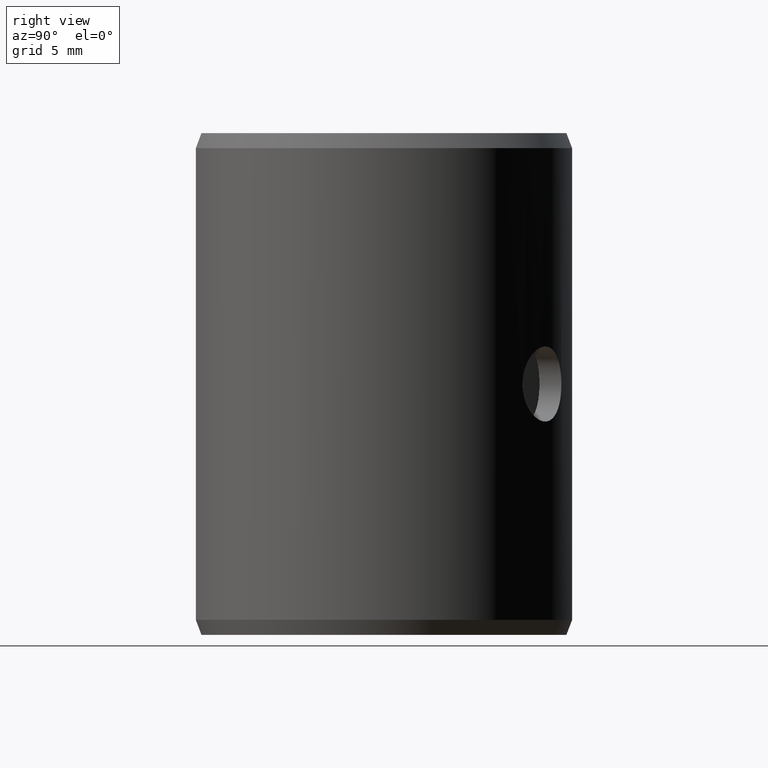
[diagram: clean part render]
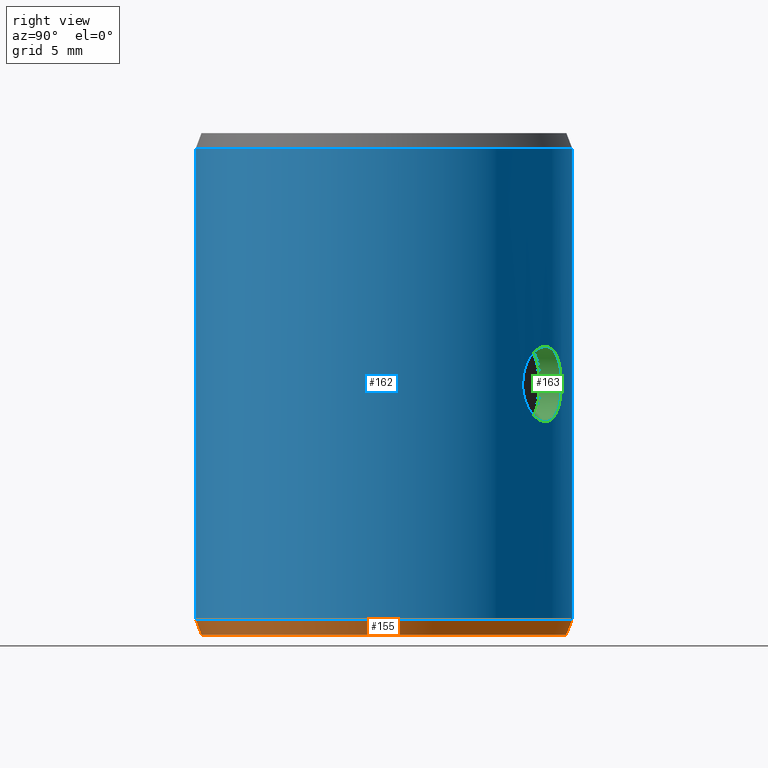
[diagram: same view with three faces highlighted in distinct colors, each labeled with its STEP entity id]
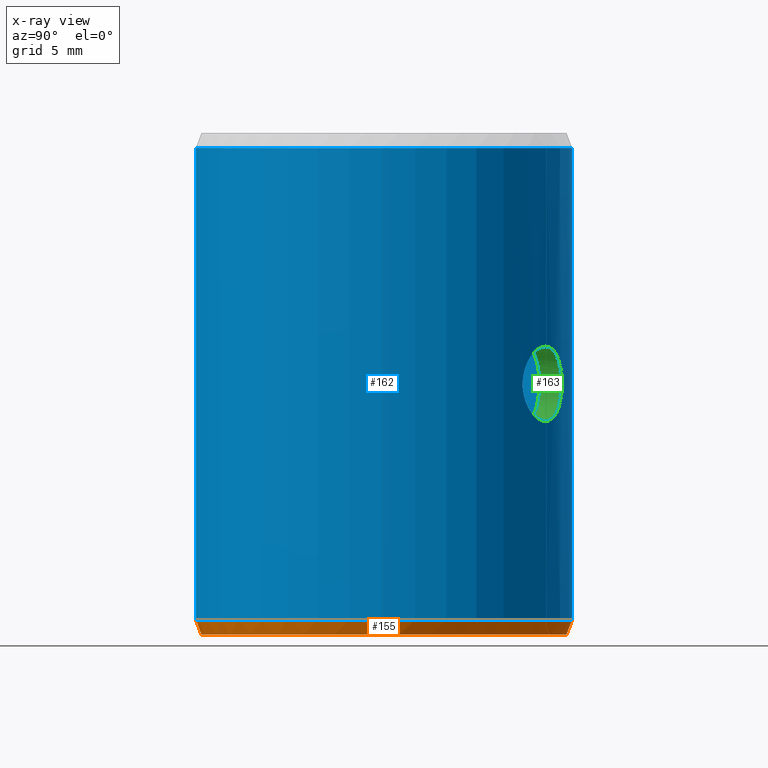
[diagram: x-ray of the same camera — body ghosted, the three highlighted faces saturated]
A machine part, right view with three faces highlighted in distinct colors.
The next image is the same camera in x-ray (body ghosted, the three faces saturated) — at least one of them is partly hidden behind the body in this view.
Their STEP definitions:

[orange] entity #155 — the highlighted conical surface has half-angle 20 deg.
#155=ADVANCED_FACE('',(#170),#171,.T.);
#170=FACE_OUTER_BOUND('',#196,.T.);
#171=CONICAL_SURFACE('',#197,0.0145632357188806,0.349065850398869);
#196=EDGE_LOOP('',(#231,#232,#233,#234));
#197=AXIS2_PLACEMENT_3D('',#235,#236,#237);
#231=ORIENTED_EDGE('',*,*,#309,.T.);
#232=ORIENTED_EDGE('',*,*,#310,.F.);
#233=ORIENTED_EDGE('',*,*,#306,.F.);
#234=ORIENTED_EDGE('',*,*,#311,.T.);
#235=CARTESIAN_POINT('',(-6.93889390390723E-018,-6.93889390390723E-018,-9.02779661431517E-036));
#236=DIRECTION('',(-6.12323399573677E-017,0.0,1.0));
#237=DIRECTION('',(1.0,0.0,6.12323399573677E-017));
#306=EDGE_CURVE('',#336,#337,#338,.T.);
#309=EDGE_CURVE('',#341,#342,#343,.T.);
#310=EDGE_CURVE('',#337,#342,#344,.T.);
#311=EDGE_CURVE('',#336,#341,#345,.T.);
#336=VERTEX_POINT('',#382);
#337=VERTEX_POINT('',#383);
#338=CIRCLE('',#384,0.0145632357188806);
#341=VERTEX_POINT('',#389);
#342=VERTEX_POINT('',#390);
#343=CIRCLE('',#391,0.015);
#344=LINE('',#392,#393);
#345=LINE('',#394,#395);
#382=CARTESIAN_POINT('',(0.000254163508807862,0.0145610176675419,1.55630263760809E-020));
#383=CARTESIAN_POINT('',(-6.93889390390723E-018,0.0145632357188805,0.0));
#384=AXIS2_PLACEMENT_3D('',#564,#565,#566);
#389=CARTESIAN_POINT('',(0.000261786096559247,0.0149977154273459,0.0012));
#390=CARTESIAN_POINT('',(-6.93889390390723E-018,0.015,0.0012));
#391=AXIS2_PLACEMENT_3D('',#569,#570,#571);
#392=CARTESIAN_POINT('',(-6.93889390390723E-018,0.0145632357188805,0.0));
#393=VECTOR('',#572,1.0);
#394=CARTESIAN_POINT('',(0.000254163508807862,0.0145610176675419,1.55630263760809E-020));
#395=VECTOR('',#573,1.0);
#564=CARTESIAN_POINT('',(-6.93889390390723E-018,-6.93889390390723E-018,-9.02779661431517E-036));
#565=DIRECTION('',(6.12323399573677E-017,0.0,-1.0));
#566=DIRECTION('',(-1.0,0.0,-6.12323399573677E-017));
#569=CARTESIAN_POINT('',(-6.93889390390723E-018,-6.93889390390723E-018,0.0012));
#570=DIRECTION('',(6.12323399573677E-017,0.0,-1.0));
#571=DIRECTION('',(-1.0,0.0,-6.12323399573677E-017));
#572=DIRECTION('',(0.0,0.342020143325671,0.939692620785908));
#573=DIRECTION('',(0.00596907455105759,0.341968052001231,0.939692620785908));

[blue] entity #162 — the highlighted cylindrical surface (partial cylindrical patch) has radius 15 mm, axis along (-0, 0, -1).
#162=ADVANCED_FACE('',(#185,#186),#187,.T.);
#185=FACE_OUTER_BOUND('',#211,.T.);
#186=FACE_BOUND('',#212,.T.);
#187=CYLINDRICAL_SURFACE('',#213,0.015);
#211=EDGE_LOOP('',(#289,#290,#291,#292));
#212=EDGE_LOOP('',(#293));
#213=AXIS2_PLACEMENT_3D('',#294,#295,#296);
#289=ORIENTED_EDGE('',*,*,#314,.T.);
#290=ORIENTED_EDGE('',*,*,#323,.F.);
#291=ORIENTED_EDGE('',*,*,#309,.F.);
#292=ORIENTED_EDGE('',*,*,#324,.T.);
#293=ORIENTED_EDGE('',*,*,#327,.T.);
#294=CARTESIAN_POINT('',(-6.93889390390723E-018,-6.93889390390723E-018,0.0));
#295=DIRECTION('',(6.12323399573677E-017,0.0,-1.0));
#296=DIRECTION('',(-1.0,0.0,-6.12323399573677E-017));
#309=EDGE_CURVE('',#341,#342,#343,.T.);
#314=EDGE_CURVE('',#351,#349,#352,.T.);
#323=EDGE_CURVE('',#342,#349,#365,.T.);
#324=EDGE_CURVE('',#341,#351,#366,.T.);
#327=EDGE_CURVE('',#370,#370,#371,.T.);
#341=VERTEX_POINT('',#389);
#342=VERTEX_POINT('',#390);
#343=CIRCLE('',#391,0.015);
#349=VERTEX_POINT('',#399);
#351=VERTEX_POINT('',#402);
#352=CIRCLE('',#403,0.015);
#365=LINE('',#422,#423);
#366=LINE('',#424,#425);
#370=VERTEX_POINT('',#491);
#371=B_SPLINE_CURVE_WITH_KNOTS('',3,(#492,#493,#494,#495,#496,#497,#498,#499,#500,#501,#502,#503,#504,#505,#506,#507,#508,#509,#510,#511,#512,#513,#514,#515,#516,#517,#518,#519,#520,#521,#522,#523,#524,#525,#526,#527,#528,#529,#530,#531,#532,#533,#534,#535,#536,#537,#538,#539,#540,#541,#542,#543,#544,#545,#546,#547,#548,#549,#550,#551,#552,#553,#554,#555),.UNSPECIFIED.,.T.,.F.,(2,2,2,2,2,2,2,2,2,2,2,2,2,2,2,2,2,2,2,2,2,2,2,2,2,2,2,2,2,2,2,2,2,2),(-0.000587616534640796,0.0,0.000587616534640802,0.0011752330692816,0.00176284960392241,0.00235046613856321,0.00293808267320401,0.00352569920784481,0.00411331574248561,0.00470093227712642,0.00528854881176722,0.00587616534640802,0.00646378188104882,0.00705139841568963,0.00763901495033043,0.00822663148497123,0.00881424801961203,0.00940186455425284,0.00998948108889364,0.0105770976235344,0.0111647141581752,0.011752330692816,0.0123399472274568,0.0129275637620976,0.0135151802967385,0.0141027968313793,0.0146904133660201,0.0152780299006609,0.0158656464353017,0.0164532629699425,0.0176284960392241,0.0182161125738649,0.0188037291085057,0.0193913456431465),.UNSPECIFIED.);
#389=CARTESIAN_POINT('',(0.000261786096559247,0.0149977154273459,0.0012));
#390=CARTESIAN_POINT('',(-6.93889390390723E-018,0.015,0.0012));
#391=AXIS2_PLACEMENT_3D('',#569,#570,#571);
#399=CARTESIAN_POINT('',(-8.67361737988404E-018,0.015,0.0388));
#402=CARTESIAN_POINT('',(0.000261786096559245,0.0149977154273459,0.0388));
#403=AXIS2_PLACEMENT_3D('',#578,#579,#580);
#422=CARTESIAN_POINT('',(-6.93889390390723E-018,0.015,0.0012));
#423=VECTOR('',#593,1.0);
#424=CARTESIAN_POINT('',(0.000261786096559247,0.0149977154273459,0.0012));
#425=VECTOR('',#594,1.0);
#491=CARTESIAN_POINT('',(0.0110526208408191,-0.0101409847918776,0.02));
#492=CARTESIAN_POINT('',(0.0110526208408191,-0.0101409847918776,0.0198012673725046));
#493=CARTESIAN_POINT('',(0.0110526208408191,-0.0101409847918776,0.0201987326274954));
#494=CARTESIAN_POINT('',(0.0110661441139161,-0.0101263012203286,0.0203940413633142));
#495=CARTESIAN_POINT('',(0.0111186673414911,-0.0100686026093021,0.0207781235462783));
#496=CARTESIAN_POINT('',(0.0111583215329435,-0.0100248562161596,0.020968921723449));
#497=CARTESIAN_POINT('',(0.011260245013509,-0.00991023530613537,0.0213319627377527));
#498=CARTESIAN_POINT('',(0.0113220759873045,-0.00983985660964806,0.0215040687929627));
#499=CARTESIAN_POINT('',(0.0114656527355897,-0.00967217607922833,0.0218297854062279));
#500=CARTESIAN_POINT('',(0.0115479121824047,-0.00957419221474236,0.0219836030783359));
#501=CARTESIAN_POINT('',(0.0117238545099675,-0.00935792005557218,0.0222595365827685));
#502=CARTESIAN_POINT('',(0.0118182526797215,-0.00923883626886934,0.0223835420887977));
#503=CARTESIAN_POINT('',(0.0120185031215394,-0.00897679089219902,0.022602880477979));
#504=CARTESIAN_POINT('',(0.0121223364018056,-0.00883638446837001,0.0226957618543431));
#505=CARTESIAN_POINT('',(0.0123319305949029,-0.00854144121995166,0.0228455559270416));
#506=CARTESIAN_POINT('',(0.0124392169881467,-0.00838471659753903,0.0229034374048186));
#507=CARTESIAN_POINT('',(0.012651781915044,-0.00806039738929858,0.0229807062089283));
#508=CARTESIAN_POINT('',(0.0127555230335729,-0.00789525980669669,0.0229998832974126));
#509=CARTESIAN_POINT('',(0.0129576659984535,-0.00755892764535897,0.0230001156507429));
#510=CARTESIAN_POINT('',(0.0130569509676747,-0.00738601190610246,0.0229805191972809));
#511=CARTESIAN_POINT('',(0.0132423993281657,-0.00704812035104002,0.022903762695182));
#512=CARTESIAN_POINT('',(0.0133293801680797,-0.00688192668646147,0.022846977127654));
#513=CARTESIAN_POINT('',(0.0134928324286928,-0.00655566652860264,0.0226962608643489));
#514=CARTESIAN_POINT('',(0.0135684918850669,-0.00639708350852047,0.022602556187018));
#515=CARTESIAN_POINT('',(0.0137045018954718,-0.00610026862089857,0.0223856685479805));
#516=CARTESIAN_POINT('',(0.0137659407401233,-0.00595975803789766,0.0222611133610915));
#517=CARTESIAN_POINT('',(0.0138754321374853,-0.00570019502551569,0.0219823388769089));
#518=CARTESIAN_POINT('',(0.0139223267613886,-0.0055839903677347,0.0218314201349415));
#519=CARTESIAN_POINT('',(0.0140028241332208,-0.00537894480097353,0.0215070411983858));
#520=CARTESIAN_POINT('',(0.0140366705910815,-0.00528939892230085,0.0213314258827292));
#521=CARTESIAN_POINT('',(0.0140899356754166,-0.00514583082741675,0.0209688752054024));
#522=CARTESIAN_POINT('',(0.0141096151885063,-0.00509119918648758,0.0207818914102204));
#523=CARTESIAN_POINT('',(0.0141361453911068,-0.00501706521840291,0.0203963823799537));
#524=CARTESIAN_POINT('',(0.0141428220834141,-0.00499805797520601,0.020197264375322));
#525=CARTESIAN_POINT('',(0.0141428763282577,-0.00499790447790203,0.0198051765730898));
#526=CARTESIAN_POINT('',(0.0141364665055109,-0.00501616026688986,0.0196099736308847));
#527=CARTESIAN_POINT('',(0.0141099482873685,-0.00509027586799996,0.0192212999358219));
#528=CARTESIAN_POINT('',(0.0140901114935298,-0.00514534261378605,0.0190327793147828));
#529=CARTESIAN_POINT('',(0.0140371734196184,-0.00528805776262922,0.0186715446550953));
#530=CARTESIAN_POINT('',(0.0140035750700722,-0.00537700076206164,0.0184963475420745));
#531=CARTESIAN_POINT('',(0.0139226981309146,-0.00558307520044179,0.0181697186589999));
#532=CARTESIAN_POINT('',(0.0138758148263774,-0.00569923140804706,0.0180189879629557));
#533=CARTESIAN_POINT('',(0.0137673741833885,-0.00595641535094323,0.0177421896776879));
#534=CARTESIAN_POINT('',(0.0137052306033078,-0.00609863450952241,0.0176156756955914));
#535=CARTESIAN_POINT('',(0.0135691533363116,-0.00639568342761334,0.0173983182306449));
#536=CARTESIAN_POINT('',(0.0134947772756335,-0.00655166432844321,0.0173059147362386));
#537=CARTESIAN_POINT('',(0.0133313499186318,-0.00687811228016419,0.0171544658923266));
#538=CARTESIAN_POINT('',(0.0132432057355811,-0.0070465855792944,0.0170967490392105));
#539=CARTESIAN_POINT('',(0.0130584975127983,-0.0073832587107244,0.0170199452002982));
#540=CARTESIAN_POINT('',(0.0129605956689943,-0.00755395268651736,0.0170001397264852));
#541=CARTESIAN_POINT('',(0.012756591284186,-0.00789358094235602,0.016999861750353));
#542=CARTESIAN_POINT('',(0.0126527535711744,-0.00805883678712944,0.0170191537885664));
#543=CARTESIAN_POINT('',(0.0124418728210435,-0.00838074125596523,0.0170953876165608));
#544=CARTESIAN_POINT('',(0.012333686201756,-0.0085389243306955,0.017153342300093));
#545=CARTESIAN_POINT('',(0.0121231334067134,-0.00883530873550886,0.0173035174452321));
#546=CARTESIAN_POINT('',(0.0120202375293411,-0.00897445823801845,0.0173955124321165));
#547=CARTESIAN_POINT('',(0.011820715143269,-0.00923567563470097,0.0176134741760668));
#548=CARTESIAN_POINT('',(0.0117246360154034,-0.00935694055624952,0.0177393863243538));
#549=CARTESIAN_POINT('',(0.0114607913160129,-0.00968132054413715,0.0181527350545179));
#550=CARTESIAN_POINT('',(0.0113114601783638,-0.00985262464379353,0.0184864457033704));
#551=CARTESIAN_POINT('',(0.0111591807525907,-0.0100238974887794,0.0190276060429597));
#552=CARTESIAN_POINT('',(0.0111193224061637,-0.0100678810726159,0.0192179084384868));
#553=CARTESIAN_POINT('',(0.0110661475581575,-0.0101262993381411,0.0196051213694044));
#554=CARTESIAN_POINT('',(0.0110526208408191,-0.0101409847918776,0.0198012673725046));
#555=CARTESIAN_POINT('',(0.0110526208408191,-0.0101409847918776,0.0201987326274954));
#569=CARTESIAN_POINT('',(-6.93889390390723E-018,-6.93889390390723E-018,0.0012));
#570=DIRECTION('',(6.12323399573677E-017,0.0,-1.0));
#571=DIRECTION('',(-1.0,0.0,-6.12323399573677E-017));
#578=CARTESIAN_POINT('',(-8.67361737988404E-018,-6.93889390390723E-018,0.0388));
#579=DIRECTION('',(6.12323399573677E-017,0.0,-1.0));
#580=DIRECTION('',(-1.0,0.0,-6.12323399573677E-017));
#593=DIRECTION('',(-4.61362626589576E-017,-9.22725253179153E-017,1.0));
#594=DIRECTION('',(-4.77489394794925E-017,-9.25219346419978E-017,1.0));

[green] entity #163 — the highlighted cylindrical surface (bore or boss wall) has radius 3 mm, axis along (0.515, 0.8572, 0).
#163=ADVANCED_FACE('',(#188,#189),#190,.F.);
#188=FACE_OUTER_BOUND('',#214,.T.);
#189=FACE_OUTER_BOUND('',#215,.T.);
#190=CYLINDRICAL_SURFACE('',#216,0.003);
#214=EDGE_LOOP('',(#297));
#215=EDGE_LOOP('',(#298));
#216=AXIS2_PLACEMENT_3D('',#299,#300,#301);
#297=ORIENTED_EDGE('',*,*,#326,.F.);
#298=ORIENTED_EDGE('',*,*,#327,.F.);
#299=CARTESIAN_POINT('',(0.0085716730070391,-0.00515038074907059,0.02));
#300=DIRECTION('',(0.85716730070391,-0.515038074907062,0.0));
#301=DIRECTION('',(-0.515038074907062,-0.85716730070391,0.0));
#326=EDGE_CURVE('',#368,#368,#369,.T.);
#327=EDGE_CURVE('',#370,#370,#371,.T.);
#368=VERTEX_POINT('',#428);
#369=B_SPLINE_CURVE_WITH_KNOTS('',3,(#429,#430,#431,#432,#433,#434,#435,#436,#437,#438,#439,#440,#441,#442,#443,#444,#445,#446,#447,#448,#449,#450,#451,#452,#453,#454,#455,#456,#457,#458,#459,#460,#461,#462,#463,#464,#465,#466,#467,#468,#469,#470,#471,#472,#473,#474,#475,#476,#477,#478,#479,#480,#481,#482,#483,#484,#485,#486,#487,#488,#489,#490),.UNSPECIFIED.,.T.,.F.,(2,2,2,2,2,2,2,2,2,2,2,2,2,2,2,2,2,2,2,2,2,2,2,2,2,2,2,2,2,2,2,2,2),(-0.000588115938674232,0.0,0.000588115938674229,0.00117623187734846,0.00176434781602269,0.00235246375469691,0.00294057969337114,0.00352869563204537,0.0041168115707196,0.00470492750939383,0.00529304344806806,0.00588115938674229,0.00646927532541651,0.00705739126409074,0.00764550720276497,0.0082336231414392,0.00882173908011343,0.00940985501878766,0.0105860868961361,0.0111742028348104,0.0117623187734846,0.0123504347121588,0.012938550650833,0.0141147825281815,0.0147028984668557,0.01529101440553,0.0158791303442042,0.0164672462828784,0.0170553622215526,0.0176434781602269,0.0182315940989011,0.0188197100375753,0.0194078259762496),.UNSPECIFIED.);
#370=VERTEX_POINT('',#491);
#371=B_SPLINE_CURVE_WITH_KNOTS('',3,(#492,#493,#494,#495,#496,#497,#498,#499,#500,#501,#502,#503,#504,#505,#506,#507,#508,#509,#510,#511,#512,#513,#514,#515,#516,#517,#518,#519,#520,#521,#522,#523,#524,#525,#526,#527,#528,#529,#530,#531,#532,#533,#534,#535,#536,#537,#538,#539,#540,#541,#542,#543,#544,#545,#546,#547,#548,#549,#550,#551,#552,#553,#554,#555),.UNSPECIFIED.,.T.,.F.,(2,2,2,2,2,2,2,2,2,2,2,2,2,2,2,2,2,2,2,2,2,2,2,2,2,2,2,2,2,2,2,2,2,2),(-0.000587616534640796,0.0,0.000587616534640802,0.0011752330692816,0.00176284960392241,0.00235046613856321,0.00293808267320401,0.00352569920784481,0.00411331574248561,0.00470093227712642,0.00528854881176722,0.00587616534640802,0.00646378188104882,0.00705139841568963,0.00763901495033043,0.00822663148497123,0.00881424801961203,0.00940186455425284,0.00998948108889364,0.0105770976235344,0.0111647141581752,0.011752330692816,0.0123399472274568,0.0129275637620976,0.0135151802967385,0.0141027968313793,0.0146904133660201,0.0152780299006609,0.0158656464353017,0.0164532629699425,0.0176284960392241,0.0182161125738649,0.0188037291085057,0.0193913456431465),.UNSPECIFIED.);
#428=CARTESIAN_POINT('',(0.00929728979945005,-0.00908627549577064,0.02));
#429=CARTESIAN_POINT('',(0.00929728979945005,-0.00908627549577064,0.0201989157082192));
#430=CARTESIAN_POINT('',(0.00929728979945005,-0.00908627549577064,0.0198010842917807));
#431=CARTESIAN_POINT('',(0.00931139817799047,-0.00907190225823773,0.019605631631804));
#432=CARTESIAN_POINT('',(0.00936611503513822,-0.00901539992239173,0.019221324873248));
#433=CARTESIAN_POINT('',(0.00940741089454677,-0.00897254565877377,0.019030437384424));
#434=CARTESIAN_POINT('',(0.00951327012871062,-0.0088602283715376,0.0186674898008351));
#435=CARTESIAN_POINT('',(0.00957740332189922,-0.0087912253245028,0.0184954551620648));
#436=CARTESIAN_POINT('',(0.00972598011278978,-0.0086265640867105,0.0181698732400995));
#437=CARTESIAN_POINT('',(0.00981087209807339,-0.00853031745320233,0.0180162632339704));
#438=CARTESIAN_POINT('',(0.0099919722469823,-0.00831745260237164,0.0177405942034214));
#439=CARTESIAN_POINT('',(0.0100889367607007,-0.00820003975402716,0.0176166447005962));
#440=CARTESIAN_POINT('',(0.0102940741396144,-0.0079409907780558,0.017397289957311));
#441=CARTESIAN_POINT('',(0.0103999645079853,-0.00780214852596706,0.0173045227165322));
#442=CARTESIAN_POINT('',(0.0106132223267488,-0.00750948035696232,0.0171546624647469));
#443=CARTESIAN_POINT('',(0.0107221123297463,-0.00735349808481569,0.0170966796869884));
#444=CARTESIAN_POINT('',(0.0109367371952506,-0.0070303205060017,0.0170193388028959));
#445=CARTESIAN_POINT('',(0.0110410563306475,-0.00686539483584787,0.0170001205031187));
#446=CARTESIAN_POINT('',(0.0112434059858247,-0.00652873594094131,0.0169998806158374));
#447=CARTESIAN_POINT('',(0.011342264592137,-0.00635533014440286,0.0170195202487443));
#448=CARTESIAN_POINT('',(0.0115257807545716,-0.00601610881882536,0.0170963614482619));
#449=CARTESIAN_POINT('',(0.0116113371508997,-0.00584895268564022,0.0171532077614402));
#450=CARTESIAN_POINT('',(0.0117711627877684,-0.00552024678565886,0.0173041246378501));
#451=CARTESIAN_POINT('',(0.0118444431689657,-0.0053605870958801,0.0173977403931483));
#452=CARTESIAN_POINT('',(0.0119755046056225,-0.00506102928623115,0.0176145714787194));
#453=CARTESIAN_POINT('',(0.012034362076845,-0.00491874208379484,0.0177393545307701));
#454=CARTESIAN_POINT('',(0.0121382510397824,-0.00465647462988058,0.018017617591275));
#455=CARTESIAN_POINT('',(0.012182434411053,-0.00453878121964329,0.0181683366117685));
#456=CARTESIAN_POINT('',(0.0122579269671041,-0.00433075854886136,0.0184925910632962));
#457=CARTESIAN_POINT('',(0.0122894422274765,-0.00423975670597719,0.0186682525453787));
#458=CARTESIAN_POINT('',(0.0123387955993382,-0.0040939040470085,0.0190304908760893));
#459=CARTESIAN_POINT('',(0.0123569410576353,-0.00403826500986523,0.0192174821970901));
#460=CARTESIAN_POINT('',(0.0123813786812032,-0.00396270596239752,0.0196034326594096));
#461=CARTESIAN_POINT('',(0.0123874924780217,-0.00394335264896871,0.0198025887940825));
#462=CARTESIAN_POINT('',(0.0123875695430586,-0.00394311055444487,0.0203910415437104));
#463=CARTESIAN_POINT('',(0.0123635274019217,-0.0040207801800044,0.0207870972485671));
#464=CARTESIAN_POINT('',(0.0122898662597692,-0.00423852074260371,0.021329075208232));
#465=CARTESIAN_POINT('',(0.0122585331114914,-0.0043290530389067,0.0215044685264383));
#466=CARTESIAN_POINT('',(0.0121827826186984,-0.00453785653417317,0.021830500465307));
#467=CARTESIAN_POINT('',(0.0121386096230333,-0.00465550994438234,0.0219811095566304));
#468=CARTESIAN_POINT('',(0.0120354891288734,-0.00491595543627173,0.022257934631748));
#469=CARTESIAN_POINT('',(0.0119761210304075,-0.00505957065725904,0.0223842322748958));
#470=CARTESIAN_POINT('',(0.0118450905958072,-0.00535915655191067,0.0226013632147855));
#471=CARTESIAN_POINT('',(0.0117729474020318,-0.00551644761022646,0.0226938369059211));
#472=CARTESIAN_POINT('',(0.0115330479420145,-0.00601021998238986,0.0229214128598247));
#473=CARTESIAN_POINT('',(0.0113479694576776,-0.00635455411503189,0.0229997645561234));
#474=CARTESIAN_POINT('',(0.0110421525781504,-0.00686367675842615,0.0230001169298978));
#475=CARTESIAN_POINT('',(0.0109377657217392,-0.00702868534077101,0.0229808274273991));
#476=CARTESIAN_POINT('',(0.0107246227760454,-0.00734980291672841,0.0229044259993158));
#477=CARTESIAN_POINT('',(0.0106148363148817,-0.00750721629720439,0.0228463314850796));
#478=CARTESIAN_POINT('',(0.0104007708033993,-0.00780109051478684,0.0226961825354363));
#479=CARTESIAN_POINT('',(0.0102956638692547,-0.0079389218998833,0.0226041625979109));
#480=CARTESIAN_POINT('',(0.0100910426861032,-0.00819744063402513,0.0223858501036057));
#481=CARTESIAN_POINT('',(0.0099926803602708,-0.00831660125140312,0.0222603530005565));
#482=CARTESIAN_POINT('',(0.00981164539424319,-0.00852942740252874,0.0219850434850607));
#483=CARTESIAN_POINT('',(0.00972760916264427,-0.00862473856388133,0.0218333953533095));
#484=CARTESIAN_POINT('',(0.00957785955988763,-0.00879073953473379,0.0215058416463024));
#485=CARTESIAN_POINT('',(0.00951372034194745,-0.0088597426378961,0.0213336669464154));
#486=CARTESIAN_POINT('',(0.00940823397702634,-0.00897168032132588,0.0209727668274811));
#487=CARTESIAN_POINT('',(0.0093666760316395,-0.00901481882617789,0.0207819399640915));
#488=CARTESIAN_POINT('',(0.00931140238042744,-0.00907189969412532,0.0203950663535035));
#489=CARTESIAN_POINT('',(0.00929728979945005,-0.00908627549577064,0.0201989157082192));
#490=CARTESIAN_POINT('',(0.00929728979945005,-0.00908627549577064,0.0198010842917807));
#491=CARTESIAN_POINT('',(0.0110526208408191,-0.0101409847918776,0.02));
#492=CARTESIAN_POINT('',(0.0110526208408191,-0.0101409847918776,0.0198012673725046));
#493=CARTESIAN_POINT('',(0.0110526208408191,-0.0101409847918776,0.0201987326274954));
#494=CARTESIAN_POINT('',(0.0110661441139161,-0.0101263012203286,0.0203940413633142));
#495=CARTESIAN_POINT('',(0.0111186673414911,-0.0100686026093021,0.0207781235462783));
#496=CARTESIAN_POINT('',(0.0111583215329435,-0.0100248562161596,0.020968921723449));
#497=CARTESIAN_POINT('',(0.011260245013509,-0.00991023530613537,0.0213319627377527));
#498=CARTESIAN_POINT('',(0.0113220759873045,-0.00983985660964806,0.0215040687929627));
#499=CARTESIAN_POINT('',(0.0114656527355897,-0.00967217607922833,0.0218297854062279));
#500=CARTESIAN_POINT('',(0.0115479121824047,-0.00957419221474236,0.0219836030783359));
#501=CARTESIAN_POINT('',(0.0117238545099675,-0.00935792005557218,0.0222595365827685));
#502=CARTESIAN_POINT('',(0.0118182526797215,-0.00923883626886934,0.0223835420887977));
#503=CARTESIAN_POINT('',(0.0120185031215394,-0.00897679089219902,0.022602880477979));
#504=CARTESIAN_POINT('',(0.0121223364018056,-0.00883638446837001,0.0226957618543431));
#505=CARTESIAN_POINT('',(0.0123319305949029,-0.00854144121995166,0.0228455559270416));
#506=CARTESIAN_POINT('',(0.0124392169881467,-0.00838471659753903,0.0229034374048186));
#507=CARTESIAN_POINT('',(0.012651781915044,-0.00806039738929858,0.0229807062089283));
#508=CARTESIAN_POINT('',(0.0127555230335729,-0.00789525980669669,0.0229998832974126));
#509=CARTESIAN_POINT('',(0.0129576659984535,-0.00755892764535897,0.0230001156507429));
#510=CARTESIAN_POINT('',(0.0130569509676747,-0.00738601190610246,0.0229805191972809));
#511=CARTESIAN_POINT('',(0.0132423993281657,-0.00704812035104002,0.022903762695182));
#512=CARTESIAN_POINT('',(0.0133293801680797,-0.00688192668646147,0.022846977127654));
#513=CARTESIAN_POINT('',(0.0134928324286928,-0.00655566652860264,0.0226962608643489));
#514=CARTESIAN_POINT('',(0.0135684918850669,-0.00639708350852047,0.022602556187018));
#515=CARTESIAN_POINT('',(0.0137045018954718,-0.00610026862089857,0.0223856685479805));
#516=CARTESIAN_POINT('',(0.0137659407401233,-0.00595975803789766,0.0222611133610915));
#517=CARTESIAN_POINT('',(0.0138754321374853,-0.00570019502551569,0.0219823388769089));
#518=CARTESIAN_POINT('',(0.0139223267613886,-0.0055839903677347,0.0218314201349415));
#519=CARTESIAN_POINT('',(0.0140028241332208,-0.00537894480097353,0.0215070411983858));
#520=CARTESIAN_POINT('',(0.0140366705910815,-0.00528939892230085,0.0213314258827292));
#521=CARTESIAN_POINT('',(0.0140899356754166,-0.00514583082741675,0.0209688752054024));
#522=CARTESIAN_POINT('',(0.0141096151885063,-0.00509119918648758,0.0207818914102204));
#523=CARTESIAN_POINT('',(0.0141361453911068,-0.00501706521840291,0.0203963823799537));
#524=CARTESIAN_POINT('',(0.0141428220834141,-0.00499805797520601,0.020197264375322));
#525=CARTESIAN_POINT('',(0.0141428763282577,-0.00499790447790203,0.0198051765730898));
#526=CARTESIAN_POINT('',(0.0141364665055109,-0.00501616026688986,0.0196099736308847));
#527=CARTESIAN_POINT('',(0.0141099482873685,-0.00509027586799996,0.0192212999358219));
#528=CARTESIAN_POINT('',(0.0140901114935298,-0.00514534261378605,0.0190327793147828));
#529=CARTESIAN_POINT('',(0.0140371734196184,-0.00528805776262922,0.0186715446550953));
#530=CARTESIAN_POINT('',(0.0140035750700722,-0.00537700076206164,0.0184963475420745));
#531=CARTESIAN_POINT('',(0.0139226981309146,-0.00558307520044179,0.0181697186589999));
#532=CARTESIAN_POINT('',(0.0138758148263774,-0.00569923140804706,0.0180189879629557));
#533=CARTESIAN_POINT('',(0.0137673741833885,-0.00595641535094323,0.0177421896776879));
#534=CARTESIAN_POINT('',(0.0137052306033078,-0.00609863450952241,0.0176156756955914));
#535=CARTESIAN_POINT('',(0.0135691533363116,-0.00639568342761334,0.0173983182306449));
#536=CARTESIAN_POINT('',(0.0134947772756335,-0.00655166432844321,0.0173059147362386));
#537=CARTESIAN_POINT('',(0.0133313499186318,-0.00687811228016419,0.0171544658923266));
#538=CARTESIAN_POINT('',(0.0132432057355811,-0.0070465855792944,0.0170967490392105));
#539=CARTESIAN_POINT('',(0.0130584975127983,-0.0073832587107244,0.0170199452002982));
#540=CARTESIAN_POINT('',(0.0129605956689943,-0.00755395268651736,0.0170001397264852));
#541=CARTESIAN_POINT('',(0.012756591284186,-0.00789358094235602,0.016999861750353));
#542=CARTESIAN_POINT('',(0.0126527535711744,-0.00805883678712944,0.0170191537885664));
#543=CARTESIAN_POINT('',(0.0124418728210435,-0.00838074125596523,0.0170953876165608));
#544=CARTESIAN_POINT('',(0.012333686201756,-0.0085389243306955,0.017153342300093));
#545=CARTESIAN_POINT('',(0.0121231334067134,-0.00883530873550886,0.0173035174452321));
#546=CARTESIAN_POINT('',(0.0120202375293411,-0.00897445823801845,0.0173955124321165));
#547=CARTESIAN_POINT('',(0.011820715143269,-0.00923567563470097,0.0176134741760668));
#548=CARTESIAN_POINT('',(0.0117246360154034,-0.00935694055624952,0.0177393863243538));
#549=CARTESIAN_POINT('',(0.0114607913160129,-0.00968132054413715,0.0181527350545179));
#550=CARTESIAN_POINT('',(0.0113114601783638,-0.00985262464379353,0.0184864457033704));
#551=CARTESIAN_POINT('',(0.0111591807525907,-0.0100238974887794,0.0190276060429597));
#552=CARTESIAN_POINT('',(0.0111193224061637,-0.0100678810726159,0.0192179084384868));
#553=CARTESIAN_POINT('',(0.0110661475581575,-0.0101262993381411,0.0196051213694044));
#554=CARTESIAN_POINT('',(0.0110526208408191,-0.0101409847918776,0.0198012673725046));
#555=CARTESIAN_POINT('',(0.0110526208408191,-0.0101409847918776,0.0201987326274954));